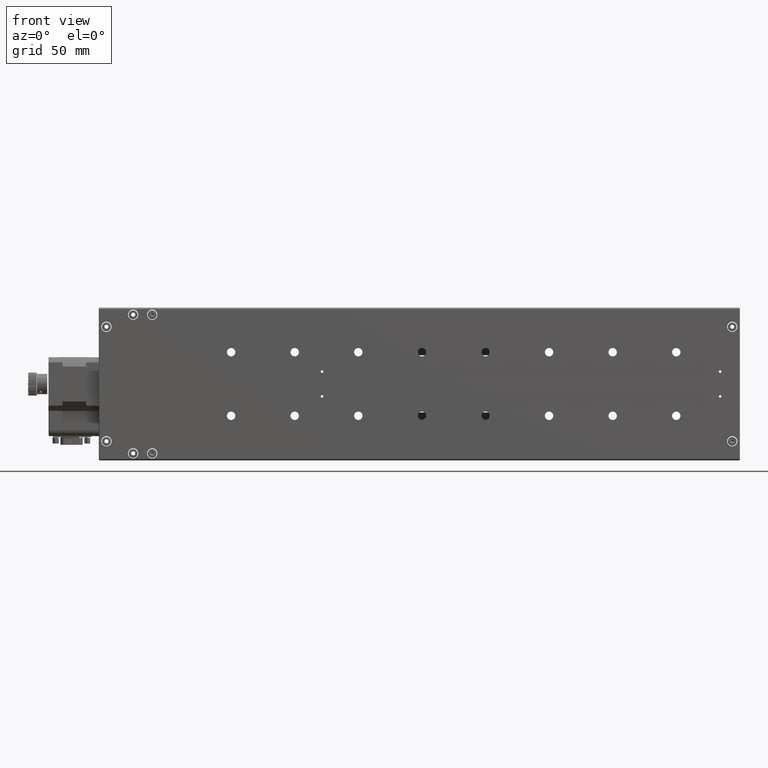
[diagram: clean part render]
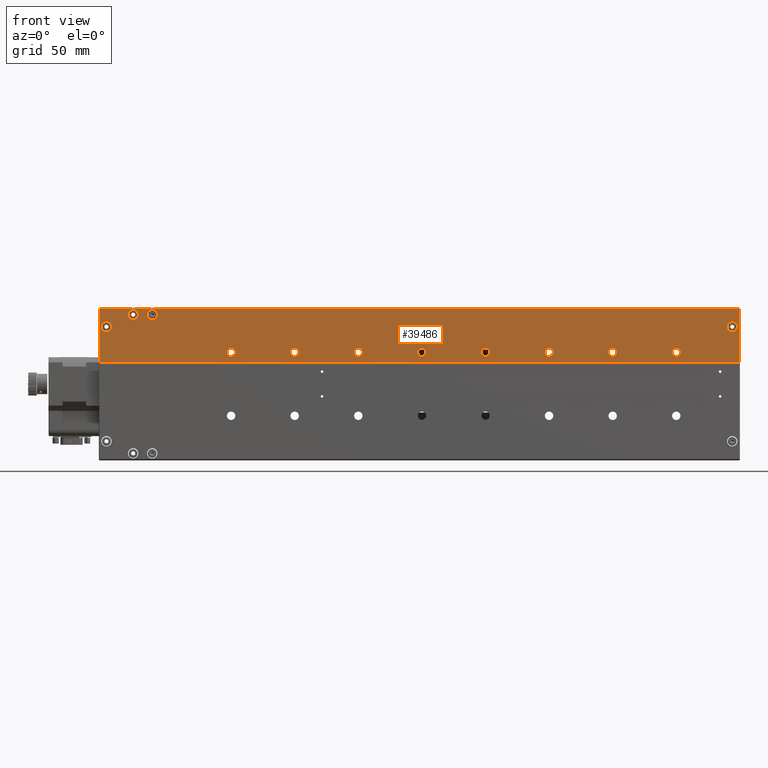
[diagram: same view with one face highlighted and labeled with its STEP entity id]
A machine part, front view. The second image highlights one B-rep face of the part: STEP entity #39486.
In plain terms, the highlighted planar face has unit normal (0, 1, -0).
Its self-contained STEP definition (entity closure, byte-faithful):
#416 = EDGE_CURVE ( 'NONE', #8009, #6429, #39025, .T. ) ;
#636 = DIRECTION ( 'NONE',  ( -1.322943490866826100E-015, -1.000000000000000000, 1.554954513842066800E-016 ) ) ;
#971 = CIRCLE ( 'NONE', #50401, 3.299999999999997200 ) ;
#1116 = EDGE_LOOP ( 'NONE', ( #12951, #31973 ) ) ;
#1284 = VERTEX_POINT ( 'NONE', #46187 ) ;
#1719 = EDGE_CURVE ( 'NONE', #44934, #29299, #53405, .T. ) ;
#1836 = CARTESIAN_POINT ( 'NONE',  ( 28.64644532276101800, -6.297046217795809800E-012, 168.1675170193747400 ) ) ;
#1846 = EDGE_CURVE ( 'NONE', #1284, #3547, #48756, .T. ) ;
#1914 = CARTESIAN_POINT ( 'NONE',  ( -121.3535546772390500, -6.097553018058476900E-012, 168.1675170193764200 ) ) ;
#2569 = ORIENTED_EDGE ( 'NONE', *, *, #5445, .T. ) ;
#2772 = VECTOR ( 'NONE', #16554, 1000.000000000000000 ) ;
#3302 = EDGE_CURVE ( 'NONE', #6651, #11751, #29555, .T. ) ;
#3547 = VERTEX_POINT ( 'NONE', #13524 ) ;
#3603 = EDGE_CURVE ( 'NONE', #26999, #42388, #32331, .T. ) ;
#3689 = EDGE_CURVE ( 'NONE', #51286, #50985, #11001, .T. ) ;
#3813 = CARTESIAN_POINT ( 'NONE',  ( 178.1464453227608300, -6.496539417533142600E-012, 160.1675170193730700 ) ) ;
#3855 = CIRCLE ( 'NONE', #51403, 3.299999999999997200 ) ;
#3901 = FACE_BOUND ( 'NONE', #8873, .T. ) ;
#3984 = CARTESIAN_POINT ( 'NONE',  ( 178.1464453227613400, -6.491335247105212100E-012, 202.1675170193730100 ) ) ;
#4329 = ORIENTED_EDGE ( 'NONE', *, *, #24608, .T. ) ;
#4489 = CARTESIAN_POINT ( 'NONE',  ( 25.34644532276102100, -6.292680504275949100E-012, 168.1675170193747700 ) ) ;
#4739 = DIRECTION ( 'NONE',  ( -1.000000000000000000, 1.322943490866827700E-015, 1.110223024625156200E-014 ) ) ;
#5013 = ORIENTED_EDGE ( 'NONE', *, *, #48770, .T. ) ;
#5236 = ORIENTED_EDGE ( 'NONE', *, *, #31393, .F. ) ;
#5445 = EDGE_CURVE ( 'NONE', #9102, #27930, #14276, .T. ) ;
#5726 = EDGE_LOOP ( 'NONE', ( #35070, #8976 ) ) ;
#5774 = LINE ( 'NONE', #51595, #26139 ) ;
#6026 = DIRECTION ( 'NONE',  ( -1.322943490866826100E-015, -1.000000000000000000, 1.554954513842066800E-016 ) ) ;
#6429 = VERTEX_POINT ( 'NONE', #52755 ) ;
#6557 = EDGE_CURVE ( 'NONE', #18322, #48312, #25921, .T. ) ;
#6651 = VERTEX_POINT ( 'NONE', #9443 ) ;
#6763 = CIRCLE ( 'NONE', #32773, 3.299999999999997200 ) ;
#6854 = EDGE_CURVE ( 'NONE', #54392, #10945, #10777, .T. ) ;
#6914 = DIRECTION ( 'NONE',  ( -1.000000000000000000, 1.322943490866900900E-015, 8.410780489584526400E-015 ) ) ;
#7036 = EDGE_CURVE ( 'NONE', #3547, #1284, #23276, .T. ) ;
#7101 = EDGE_CURVE ( 'NONE', #11016, #9701, #23872, .T. ) ;
#7392 = VERTEX_POINT ( 'NONE', #24485 ) ;
#7591 = EDGE_CURVE ( 'NONE', #36216, #7392, #48706, .T. ) ;
#7742 = CARTESIAN_POINT ( 'NONE',  ( -124.6535546772390400, -6.093187304538616300E-012, 168.1675170193764500 ) ) ;
#7972 = CARTESIAN_POINT ( 'NONE',  ( -298.3535546772387800, -5.861630625325631200E-012, 197.6675170193782900 ) ) ;
#8009 = VERTEX_POINT ( 'NONE', #12535 ) ;
#8418 = CARTESIAN_POINT ( 'NONE',  ( -74.65355467723901500, -6.159106796625735000E-012, 168.1675170193758800 ) ) ;
#8477 = CARTESIAN_POINT ( 'NONE',  ( -21.35355467723900300, -6.229392002232714300E-012, 168.1675170193752800 ) ) ;
#8533 = FACE_BOUND ( 'NONE', #16710, .T. ) ;
#8598 = CARTESIAN_POINT ( 'NONE',  ( 78.64644532276102500, -6.362965709882928400E-012, 168.1675170193741700 ) ) ;
#8600 = AXIS2_PLACEMENT_3D ( 'NONE', #42603, #38629, #34616 ) ;
#8710 = VERTEX_POINT ( 'NONE', #3813 ) ;
#8796 = DIRECTION ( 'NONE',  ( 1.322943490866826100E-015, 1.000000000000000000, -1.554954513842066800E-016 ) ) ;
#8873 = EDGE_LOOP ( 'NONE', ( #44659, #20965 ) ) ;
#8944 = AXIS2_PLACEMENT_3D ( 'NONE', #20129, #20493, #28346 ) ;
#8976 = ORIENTED_EDGE ( 'NONE', *, *, #6854, .T. ) ;
#9102 = VERTEX_POINT ( 'NONE', #31502 ) ;
#9176 = CARTESIAN_POINT ( 'NONE',  ( -325.3535546772392300, -5.830405602758048600E-012, 160.1675170193786400 ) ) ;
#9207 = ORIENTED_EDGE ( 'NONE', *, *, #1846, .F. ) ;
#9392 = EDGE_CURVE ( 'NONE', #29299, #44934, #3855, .T. ) ;
#9443 = CARTESIAN_POINT ( 'NONE',  ( 176.6464453227611400, -6.491422850640749000E-012, 188.1675170193730700 ) ) ;
#9701 = VERTEX_POINT ( 'NONE', #24351 ) ;
#9844 = CARTESIAN_POINT ( 'NONE',  ( -171.3535546772390600, -6.031633525971358300E-012, 168.1675170193769600 ) ) ;
#9846 = ORIENTED_EDGE ( 'NONE', *, *, #10206, .F. ) ;
#10192 = DIRECTION ( 'NONE',  ( -1.000000000000000000, 1.322943490866900900E-015, 8.410780489584526400E-015 ) ) ;
#10206 = EDGE_CURVE ( 'NONE', #9701, #11016, #18945, .T. ) ;
#10208 = DIRECTION ( 'NONE',  ( -1.000000000000000000, 1.322943490866900900E-015, 8.410780489584526400E-015 ) ) ;
#10483 = DIRECTION ( 'NONE',  ( -1.000000000000000000, 1.322943490866900900E-015, 8.410780489584526400E-015 ) ) ;
#10777 = CIRCLE ( 'NONE', #50533, 3.299999999999997200 ) ;
#10864 = CARTESIAN_POINT ( 'NONE',  ( 75.34644532276102800, -6.358599996363067800E-012, 168.1675170193742000 ) ) ;
#10945 = VERTEX_POINT ( 'NONE', #46860 ) ;
#11001 = CIRCLE ( 'NONE', #20597, 3.299999999999997200 ) ;
#11016 = VERTEX_POINT ( 'NONE', #51649 ) ;
#11707 = CIRCLE ( 'NONE', #38493, 4.000000000000003600 ) ;
#11751 = VERTEX_POINT ( 'NONE', #37951 ) ;
#12001 = LINE ( 'NONE', #20026, #19919 ) ;
#12252 = EDGE_LOOP ( 'NONE', ( #50260, #31637 ) ) ;
#12535 = CARTESIAN_POINT ( 'NONE',  ( -174.6535546772390700, -6.027267812451497600E-012, 168.1675170193769900 ) ) ;
#12682 = EDGE_CURVE ( 'NONE', #27930, #9102, #19857, .T. ) ;
#12842 = DIRECTION ( 'NONE',  ( -1.000000000000000000, 1.322943490866900900E-015, 8.410780489584526400E-015 ) ) ;
#12951 = ORIENTED_EDGE ( 'NONE', *, *, #15109, .T. ) ;
#12968 = DIRECTION ( 'NONE',  ( 1.000000000000000000, -1.322943490866737200E-015, -1.387778780781444400E-014 ) ) ;
#13048 = EDGE_LOOP ( 'NONE', ( #5236, #16357, #20626, #23503 ) ) ;
#13206 = CARTESIAN_POINT ( 'NONE',  ( 31.94644532276101500, -6.301411931315670400E-012, 168.1675170193747100 ) ) ;
#13221 = DIRECTION ( 'NONE',  ( 1.110223024625156200E-014, 1.554954513841917700E-016, 1.000000000000000000 ) ) ;
#13524 = CARTESIAN_POINT ( 'NONE',  ( -315.3535546772388300, -5.839166823673469500E-012, 188.1675170193784900 ) ) ;
#13558 = CARTESIAN_POINT ( 'NONE',  ( -283.3535546772388300, -5.880712583561376100E-012, 197.6675170193781200 ) ) ;
#13711 = DIRECTION ( 'NONE',  ( -1.000000000000000000, 1.322943490866900900E-015, 8.410780489584526400E-015 ) ) ;
#14262 = DIRECTION ( 'NONE',  ( 1.322943490866826100E-015, 1.000000000000000000, -1.554954513842066800E-016 ) ) ;
#14276 = CIRCLE ( 'NONE', #52466, 3.299999999999997200 ) ;
#14477 = CIRCLE ( 'NONE', #18287, 3.299999999999997200 ) ;
#14899 = DIRECTION ( 'NONE',  ( 1.322943490866826100E-015, 1.000000000000000000, -1.554954513842066800E-016 ) ) ;
#15109 = EDGE_CURVE ( 'NONE', #50985, #51286, #14477, .T. ) ;
#15229 = DIRECTION ( 'NONE',  ( -1.322943490866826100E-015, -1.000000000000000000, 1.554954513842066800E-016 ) ) ;
#15392 = CARTESIAN_POINT ( 'NONE',  ( -71.35355467723901800, -6.163472510145595600E-012, 168.1675170193758500 ) ) ;
#15747 = ORIENTED_EDGE ( 'NONE', *, *, #40342, .T. ) ;
#15766 = FACE_BOUND ( 'NONE', #30011, .T. ) ;
#15902 = DIRECTION ( 'NONE',  ( -1.000000000000000000, 1.322943490866900900E-015, 8.410780489584526400E-015 ) ) ;
#16158 = CARTESIAN_POINT ( 'NONE',  ( 128.6464453227610200, -6.428885201970047100E-012, 168.1675170193736300 ) ) ;
#16167 = DIRECTION ( 'NONE',  ( -1.322943490866826100E-015, -1.000000000000000000, 1.554954513842066800E-016 ) ) ;
#16357 = ORIENTED_EDGE ( 'NONE', *, *, #34809, .T. ) ;
#16430 = CARTESIAN_POINT ( 'NONE',  ( 28.64644532276101800, -6.297046217795809800E-012, 168.1675170193747400 ) ) ;
#16538 = CARTESIAN_POINT ( 'NONE',  ( 81.94644532276102200, -6.367331423402789100E-012, 168.1675170193741500 ) ) ;
#16554 = DIRECTION ( 'NONE',  ( -1.000000000000000000, 1.322943490866827700E-015, 1.108846259961682600E-014 ) ) ;
#16710 = EDGE_LOOP ( 'NONE', ( #54370, #2569 ) ) ;
#16952 = CIRCLE ( 'NONE', #39003, 3.299999999999997200 ) ;
#17344 = ORIENTED_EDGE ( 'NONE', *, *, #30765, .F. ) ;
#17469 = ORIENTED_EDGE ( 'NONE', *, *, #416, .T. ) ;
#17487 = CARTESIAN_POINT ( 'NONE',  ( -121.3535546772390500, -6.097553018058476900E-012, 168.1675170193764200 ) ) ;
#17531 = DIRECTION ( 'NONE',  ( -1.000000000000000000, 1.322943490866900900E-015, 8.410780489584526400E-015 ) ) ;
#18287 = AXIS2_PLACEMENT_3D ( 'NONE', #17487, #37829, #46763 ) ;
#18322 = VERTEX_POINT ( 'NONE', #23164 ) ;
#18424 = FACE_BOUND ( 'NONE', #43066, .T. ) ;
#18740 = ORIENTED_EDGE ( 'NONE', *, *, #7101, .F. ) ;
#18819 = CARTESIAN_POINT ( 'NONE',  ( -18.05355467723900600, -6.233757715752574900E-012, 168.1675170193752800 ) ) ;
#18945 = CIRCLE ( 'NONE', #50308, 4.000000000000003600 ) ;
#19046 = DIRECTION ( 'NONE',  ( 1.322943490866826100E-015, 1.000000000000000000, -1.554954513842066800E-016 ) ) ;
#19717 = FACE_BOUND ( 'NONE', #49607, .T. ) ;
#19857 = CIRCLE ( 'NONE', #32223, 3.299999999999997200 ) ;
#19919 = VECTOR ( 'NONE', #13221, 1000.000000000000000 ) ;
#20026 = CARTESIAN_POINT ( 'NONE',  ( 178.1464453227613400, -6.489600523629235300E-012, 203.1675170193730700 ) ) ;
#20079 = EDGE_CURVE ( 'NONE', #48312, #18322, #11707, .T. ) ;
#20129 = CARTESIAN_POINT ( 'NONE',  ( 172.6464453227611400, -6.486131076677281700E-012, 188.1675170193731200 ) ) ;
#20319 = EDGE_CURVE ( 'NONE', #10945, #54392, #44430, .T. ) ;
#20455 = DIRECTION ( 'NONE',  ( -1.000000000000000000, 1.322943490866827500E-015, 1.110223024625156200E-014 ) ) ;
#20493 = DIRECTION ( 'NONE',  ( -1.322943490866826100E-015, -1.000000000000000000, 1.554954513842066800E-016 ) ) ;
#20597 = AXIS2_PLACEMENT_3D ( 'NONE', #1914, #14262, #43687 ) ;
#20618 = DIRECTION ( 'NONE',  ( -1.000000000000000000, 1.322943490866900900E-015, 8.410780489584526400E-015 ) ) ;
#20626 = ORIENTED_EDGE ( 'NONE', *, *, #7591, .T. ) ;
#20779 = CARTESIAN_POINT ( 'NONE',  ( -224.6535546772390700, -5.961348320364379000E-012, 168.1675170193775600 ) ) ;
#20902 = LINE ( 'NONE', #9176, #47739 ) ;
#20950 = CARTESIAN_POINT ( 'NONE',  ( -319.3535546772388300, -5.833875049710002300E-012, 188.1675170193785500 ) ) ;
#20965 = ORIENTED_EDGE ( 'NONE', *, *, #20079, .F. ) ;
#21361 = AXIS2_PLACEMENT_3D ( 'NONE', #20950, #16167, #45423 ) ;
#21403 = EDGE_LOOP ( 'NONE', ( #34703, #9207 ) ) ;
#21448 = EDGE_CURVE ( 'NONE', #6429, #8009, #971, .T. ) ;
#21642 = CIRCLE ( 'NONE', #24590, 3.299999999999997200 ) ;
#21775 = DIRECTION ( 'NONE',  ( 1.322943490866826100E-015, 1.000000000000000000, -1.554954513842066800E-016 ) ) ;
#23164 = CARTESIAN_POINT ( 'NONE',  ( -294.3535546772387800, -5.866922399289098400E-012, 197.6675170193782400 ) ) ;
#23211 = DIRECTION ( 'NONE',  ( 1.322943490866826100E-015, 1.000000000000000000, -1.554954513842066800E-016 ) ) ;
#23276 = CIRCLE ( 'NONE', #21361, 4.000000000000003600 ) ;
#23285 = VERTEX_POINT ( 'NONE', #48461 ) ;
#23364 = CARTESIAN_POINT ( 'NONE',  ( 131.9464453227610400, -6.433250915489907700E-012, 168.1675170193736100 ) ) ;
#23503 = ORIENTED_EDGE ( 'NONE', *, *, #40815, .T. ) ;
#23872 = CIRCLE ( 'NONE', #41660, 4.000000000000003600 ) ;
#24351 = CARTESIAN_POINT ( 'NONE',  ( -279.3535546772388300, -5.886004357524843300E-012, 197.6675170193780700 ) ) ;
#24485 = CARTESIAN_POINT ( 'NONE',  ( -324.8535546772387800, -5.825201432330118200E-012, 202.1675170193786100 ) ) ;
#24590 = AXIS2_PLACEMENT_3D ( 'NONE', #51256, #26159, #13711 ) ;
#24608 = EDGE_CURVE ( 'NONE', #38359, #41732, #30710, .T. ) ;
#24632 = CARTESIAN_POINT ( 'NONE',  ( -298.3535546772387800, -5.861630625325631200E-012, 197.6675170193782900 ) ) ;
#24654 = PLANE ( 'NONE',  #27711 ) ;
#25921 = CIRCLE ( 'NONE', #28357, 4.000000000000003600 ) ;
#26074 = CARTESIAN_POINT ( 'NONE',  ( -302.3535546772387800, -5.856338851362163900E-012, 197.6675170193783500 ) ) ;
#26135 = AXIS2_PLACEMENT_3D ( 'NONE', #16430, #54009, #15902 ) ;
#26139 = VECTOR ( 'NONE', #35125, 1000.000000000000000 ) ;
#26159 = DIRECTION ( 'NONE',  ( 1.322943490866826100E-015, 1.000000000000000000, -1.554954513842066800E-016 ) ) ;
#26500 = CARTESIAN_POINT ( 'NONE',  ( -221.3535546772390900, -5.965714033884239600E-012, 168.1675170193775300 ) ) ;
#26999 = VERTEX_POINT ( 'NONE', #10864 ) ;
#27113 = EDGE_CURVE ( 'NONE', #49166, #30418, #46806, .T. ) ;
#27711 = AXIS2_PLACEMENT_3D ( 'NONE', #29216, #50094, #20455 ) ;
#27930 = VERTEX_POINT ( 'NONE', #8418 ) ;
#28346 = DIRECTION ( 'NONE',  ( 1.000000000000000000, -1.322943490866737200E-015, -1.387778780781444400E-014 ) ) ;
#28357 = AXIS2_PLACEMENT_3D ( 'NONE', #7972, #29586, #50096 ) ;
#28507 = AXIS2_PLACEMENT_3D ( 'NONE', #48858, #19046, #36266 ) ;
#28808 = CARTESIAN_POINT ( 'NONE',  ( 178.6464453227614500, -6.491335247105212100E-012, 202.1675170193730100 ) ) ;
#29216 = CARTESIAN_POINT ( 'NONE',  ( 178.6464453227614500, -6.491335247105212100E-012, 203.1675170193730700 ) ) ;
#29299 = VERTEX_POINT ( 'NONE', #20779 ) ;
#29523 = FACE_BOUND ( 'NONE', #5726, .T. ) ;
#29555 = CIRCLE ( 'NONE', #8944, 4.000000000000003600 ) ;
#29586 = DIRECTION ( 'NONE',  ( -1.322943490866826100E-015, -1.000000000000000000, 1.554954513842066800E-016 ) ) ;
#30011 = EDGE_LOOP ( 'NONE', ( #43064, #17344 ) ) ;
#30050 = AXIS2_PLACEMENT_3D ( 'NONE', #8477, #41988, #47324 ) ;
#30418 = VERTEX_POINT ( 'NONE', #52761 ) ;
#30710 = CIRCLE ( 'NONE', #26135, 3.299999999999997200 ) ;
#30765 = EDGE_CURVE ( 'NONE', #11751, #6651, #37328, .T. ) ;
#30886 = FACE_OUTER_BOUND ( 'NONE', #13048, .T. ) ;
#30918 = DIRECTION ( 'NONE',  ( 1.322943490866826100E-015, 1.000000000000000000, -1.554954513842066800E-016 ) ) ;
#31393 = EDGE_CURVE ( 'NONE', #8710, #23285, #20902, .T. ) ;
#31502 = CARTESIAN_POINT ( 'NONE',  ( -68.05355467723902100, -6.167838223665456200E-012, 168.1675170193758200 ) ) ;
#31512 = DIRECTION ( 'NONE',  ( 1.000000000000000000, -1.322943490866737200E-015, -1.387778780781444400E-014 ) ) ;
#31637 = ORIENTED_EDGE ( 'NONE', *, *, #1719, .T. ) ;
#31969 = AXIS2_PLACEMENT_3D ( 'NONE', #42608, #636, #12968 ) ;
#31973 = ORIENTED_EDGE ( 'NONE', *, *, #3689, .T. ) ;
#32169 = FACE_BOUND ( 'NONE', #21403, .T. ) ;
#32223 = AXIS2_PLACEMENT_3D ( 'NONE', #34309, #34858, #38504 ) ;
#32331 = CIRCLE ( 'NONE', #8600, 3.299999999999997200 ) ;
#32535 = ORIENTED_EDGE ( 'NONE', *, *, #3603, .T. ) ;
#32773 = AXIS2_PLACEMENT_3D ( 'NONE', #1836, #14899, #10483 ) ;
#32885 = DIRECTION ( 'NONE',  ( -1.322943490866826100E-015, -1.000000000000000000, 1.554954513842066800E-016 ) ) ;
#33495 = CARTESIAN_POINT ( 'NONE',  ( -218.0535546772390800, -5.970079747404100200E-012, 168.1675170193775000 ) ) ;
#33913 = EDGE_LOOP ( 'NONE', ( #4329, #37622 ) ) ;
#34309 = CARTESIAN_POINT ( 'NONE',  ( -71.35355467723901800, -6.163472510145595600E-012, 168.1675170193758500 ) ) ;
#34472 = DIRECTION ( 'NONE',  ( -1.322943490866826100E-015, -1.000000000000000000, 1.554954513842066800E-016 ) ) ;
#34616 = DIRECTION ( 'NONE',  ( -1.000000000000000000, 1.322943490866900900E-015, 8.410780489584526400E-015 ) ) ;
#34659 = DIRECTION ( 'NONE',  ( 1.000000000000000000, -1.322943490866737200E-015, -1.387778780781444400E-014 ) ) ;
#34703 = ORIENTED_EDGE ( 'NONE', *, *, #7036, .F. ) ;
#34809 = EDGE_CURVE ( 'NONE', #8710, #36216, #12001, .T. ) ;
#34858 = DIRECTION ( 'NONE',  ( 1.322943490866826100E-015, 1.000000000000000000, -1.554954513842066800E-016 ) ) ;
#35070 = ORIENTED_EDGE ( 'NONE', *, *, #20319, .T. ) ;
#35125 = DIRECTION ( 'NONE',  ( -1.110223024625156200E-014, -1.554954513841917700E-016, -1.000000000000000000 ) ) ;
#36216 = VERTEX_POINT ( 'NONE', #3984 ) ;
#36266 = DIRECTION ( 'NONE',  ( -1.000000000000000000, 1.322943490866900900E-015, 8.410780489584526400E-015 ) ) ;
#36338 = AXIS2_PLACEMENT_3D ( 'NONE', #39935, #6026, #31512 ) ;
#36505 = EDGE_LOOP ( 'NONE', ( #15747, #44534 ) ) ;
#37328 = CIRCLE ( 'NONE', #31969, 4.000000000000003600 ) ;
#37459 = DIRECTION ( 'NONE',  ( 1.322943490866826100E-015, 1.000000000000000000, -1.554954513842066800E-016 ) ) ;
#37622 = ORIENTED_EDGE ( 'NONE', *, *, #42581, .T. ) ;
#37829 = DIRECTION ( 'NONE',  ( 1.322943490866826100E-015, 1.000000000000000000, -1.554954513842066800E-016 ) ) ;
#37951 = CARTESIAN_POINT ( 'NONE',  ( 168.6464453227611400, -6.480839302713814500E-012, 188.1675170193731800 ) ) ;
#38074 = FACE_BOUND ( 'NONE', #50379, .T. ) ;
#38359 = VERTEX_POINT ( 'NONE', #4489 ) ;
#38493 = AXIS2_PLACEMENT_3D ( 'NONE', #24632, #32885, #45827 ) ;
#38504 = DIRECTION ( 'NONE',  ( -1.000000000000000000, 1.322943490866900900E-015, 8.410780489584526400E-015 ) ) ;
#38629 = DIRECTION ( 'NONE',  ( 1.322943490866826100E-015, 1.000000000000000000, -1.554954513842066800E-016 ) ) ;
#39003 = AXIS2_PLACEMENT_3D ( 'NONE', #8598, #8796, #12842 ) ;
#39025 = CIRCLE ( 'NONE', #28507, 3.299999999999997200 ) ;
#39318 = CARTESIAN_POINT ( 'NONE',  ( -21.35355467723900300, -6.229392002232714300E-012, 168.1675170193752800 ) ) ;
#39390 = FACE_BOUND ( 'NONE', #36505, .T. ) ;
#39486 = ADVANCED_FACE ( 'NONE', ( #32169, #30886, #3901, #19717, #47254, #38074, #51854, #8533, #29523, #44570, #18424, #39390, #15766 ), #24654, .F. ) ;
#39864 = ORIENTED_EDGE ( 'NONE', *, *, #21448, .T. ) ;
#39935 = CARTESIAN_POINT ( 'NONE',  ( -319.3535546772388300, -5.833875049710002300E-012, 188.1675170193785500 ) ) ;
#40342 = EDGE_CURVE ( 'NONE', #30418, #49166, #21642, .T. ) ;
#40815 = EDGE_CURVE ( 'NONE', #7392, #23285, #5774, .T. ) ;
#41576 = DIRECTION ( 'NONE',  ( -1.000000000000000000, 1.322943490866900900E-015, 8.410780489584526400E-015 ) ) ;
#41660 = AXIS2_PLACEMENT_3D ( 'NONE', #48355, #15229, #52410 ) ;
#41732 = VERTEX_POINT ( 'NONE', #13206 ) ;
#41988 = DIRECTION ( 'NONE',  ( 1.322943490866826100E-015, 1.000000000000000000, -1.554954513842066800E-016 ) ) ;
#42388 = VERTEX_POINT ( 'NONE', #16538 ) ;
#42581 = EDGE_CURVE ( 'NONE', #41732, #38359, #6763, .T. ) ;
#42603 = CARTESIAN_POINT ( 'NONE',  ( 78.64644532276102500, -6.362965709882928400E-012, 168.1675170193741700 ) ) ;
#42608 = CARTESIAN_POINT ( 'NONE',  ( 172.6464453227611400, -6.486131076677281700E-012, 188.1675170193731200 ) ) ;
#42697 = AXIS2_PLACEMENT_3D ( 'NONE', #16158, #49649, #41576 ) ;
#43064 = ORIENTED_EDGE ( 'NONE', *, *, #3302, .F. ) ;
#43066 = EDGE_LOOP ( 'NONE', ( #32535, #5013 ) ) ;
#43687 = DIRECTION ( 'NONE',  ( -1.000000000000000000, 1.322943490866900900E-015, 8.410780489584526400E-015 ) ) ;
#44430 = CIRCLE ( 'NONE', #30050, 3.299999999999997200 ) ;
#44534 = ORIENTED_EDGE ( 'NONE', *, *, #27113, .T. ) ;
#44570 = FACE_BOUND ( 'NONE', #33913, .T. ) ;
#44659 = ORIENTED_EDGE ( 'NONE', *, *, #6557, .F. ) ;
#44686 = AXIS2_PLACEMENT_3D ( 'NONE', #53763, #37459, #20618 ) ;
#44934 = VERTEX_POINT ( 'NONE', #33495 ) ;
#45423 = DIRECTION ( 'NONE',  ( 1.000000000000000000, -1.322943490866737200E-015, -1.387778780781444400E-014 ) ) ;
#45827 = DIRECTION ( 'NONE',  ( 1.000000000000000000, -1.322943490866737200E-015, -1.387778780781444400E-014 ) ) ;
#46187 = CARTESIAN_POINT ( 'NONE',  ( -323.3535546772388900, -5.828583275746535000E-012, 188.1675170193786100 ) ) ;
#46763 = DIRECTION ( 'NONE',  ( -1.000000000000000000, 1.322943490866900900E-015, 8.410780489584526400E-015 ) ) ;
#46806 = CIRCLE ( 'NONE', #42697, 3.299999999999997200 ) ;
#46860 = CARTESIAN_POINT ( 'NONE',  ( -24.65355467723900100, -6.225026288712853600E-012, 168.1675170193753100 ) ) ;
#47254 = FACE_BOUND ( 'NONE', #12252, .T. ) ;
#47324 = DIRECTION ( 'NONE',  ( -1.000000000000000000, 1.322943490866900900E-015, 8.410780489584526400E-015 ) ) ;
#47739 = VECTOR ( 'NONE', #4739, 1000.000000000000000 ) ;
#48312 = VERTEX_POINT ( 'NONE', #26074 ) ;
#48355 = CARTESIAN_POINT ( 'NONE',  ( -283.3535546772388300, -5.880712583561376100E-012, 197.6675170193781200 ) ) ;
#48461 = CARTESIAN_POINT ( 'NONE',  ( -324.8535546772391700, -5.832140326234025500E-012, 160.1675170193786400 ) ) ;
#48706 = LINE ( 'NONE', #28808, #2772 ) ;
#48756 = CIRCLE ( 'NONE', #36338, 4.000000000000003600 ) ;
#48770 = EDGE_CURVE ( 'NONE', #42388, #26999, #16952, .T. ) ;
#48858 = CARTESIAN_POINT ( 'NONE',  ( -171.3535546772390600, -6.031633525971358300E-012, 168.1675170193769600 ) ) ;
#49166 = VERTEX_POINT ( 'NONE', #23364 ) ;
#49607 = EDGE_LOOP ( 'NONE', ( #9846, #18740 ) ) ;
#49649 = DIRECTION ( 'NONE',  ( 1.322943490866826100E-015, 1.000000000000000000, -1.554954513842066800E-016 ) ) ;
#49816 = CARTESIAN_POINT ( 'NONE',  ( -118.0535546772390500, -6.101918731578337600E-012, 168.1675170193763900 ) ) ;
#50094 = DIRECTION ( 'NONE',  ( 1.322943490866825700E-015, 1.000000000000000000, -1.554954513842066600E-016 ) ) ;
#50096 = DIRECTION ( 'NONE',  ( 1.000000000000000000, -1.322943490866737200E-015, -1.387778780781444400E-014 ) ) ;
#50260 = ORIENTED_EDGE ( 'NONE', *, *, #9392, .T. ) ;
#50308 = AXIS2_PLACEMENT_3D ( 'NONE', #13558, #34472, #34659 ) ;
#50379 = EDGE_LOOP ( 'NONE', ( #17469, #39864 ) ) ;
#50401 = AXIS2_PLACEMENT_3D ( 'NONE', #9844, #30918, #10208 ) ;
#50533 = AXIS2_PLACEMENT_3D ( 'NONE', #39318, #23211, #10192 ) ;
#50985 = VERTEX_POINT ( 'NONE', #7742 ) ;
#51256 = CARTESIAN_POINT ( 'NONE',  ( 128.6464453227610200, -6.428885201970047100E-012, 168.1675170193736300 ) ) ;
#51286 = VERTEX_POINT ( 'NONE', #49816 ) ;
#51403 = AXIS2_PLACEMENT_3D ( 'NONE', #26500, #21775, #17531 ) ;
#51595 = CARTESIAN_POINT ( 'NONE',  ( -324.8535546772387800, -5.825201432330118200E-012, 203.1675170193786600 ) ) ;
#51649 = CARTESIAN_POINT ( 'NONE',  ( -287.3535546772388300, -5.875420809597908800E-012, 197.6675170193781800 ) ) ;
#51854 = FACE_BOUND ( 'NONE', #1116, .T. ) ;
#52410 = DIRECTION ( 'NONE',  ( 1.000000000000000000, -1.322943490866737200E-015, -1.387778780781444400E-014 ) ) ;
#52466 = AXIS2_PLACEMENT_3D ( 'NONE', #15392, #53652, #6914 ) ;
#52755 = CARTESIAN_POINT ( 'NONE',  ( -168.0535546772390800, -6.035999239491218900E-012, 168.1675170193769300 ) ) ;
#52761 = CARTESIAN_POINT ( 'NONE',  ( 125.3464453227610400, -6.424519488450186400E-012, 168.1675170193736600 ) ) ;
#53405 = CIRCLE ( 'NONE', #44686, 3.299999999999997200 ) ;
#53652 = DIRECTION ( 'NONE',  ( 1.322943490866826100E-015, 1.000000000000000000, -1.554954513842066800E-016 ) ) ;
#53763 = CARTESIAN_POINT ( 'NONE',  ( -221.3535546772390900, -5.965714033884239600E-012, 168.1675170193775300 ) ) ;
#54009 = DIRECTION ( 'NONE',  ( 1.322943490866826100E-015, 1.000000000000000000, -1.554954513842066800E-016 ) ) ;
#54370 = ORIENTED_EDGE ( 'NONE', *, *, #12682, .T. ) ;
#54392 = VERTEX_POINT ( 'NONE', #18819 ) ;